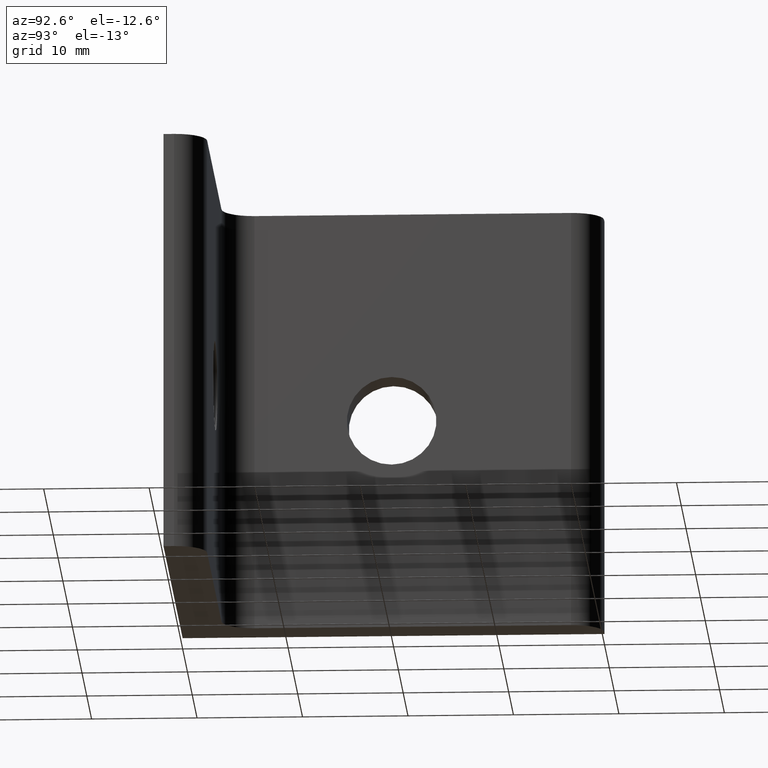
[diagram: clean part render]
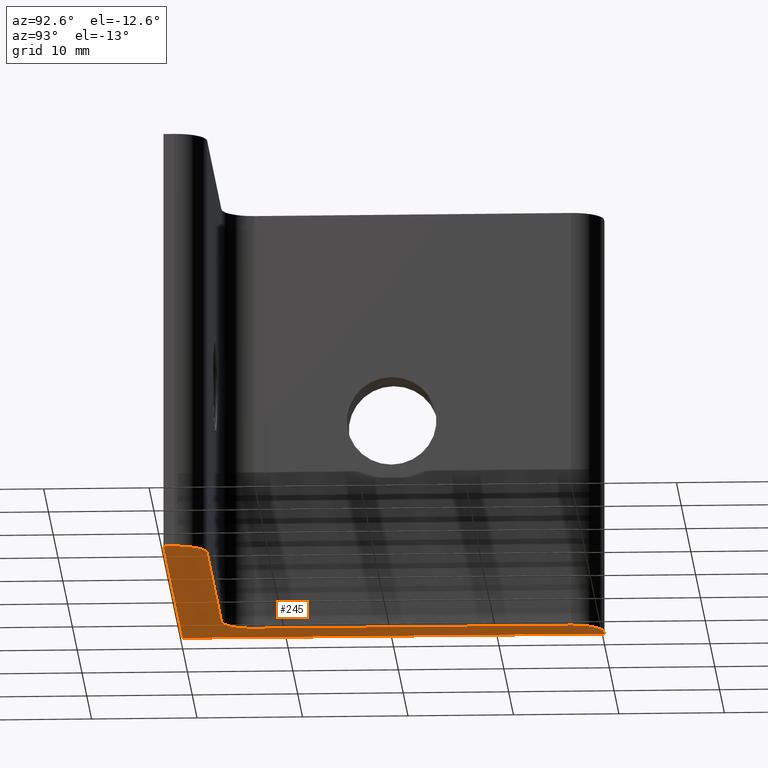
[diagram: same view with one face highlighted and labeled with its STEP entity id]
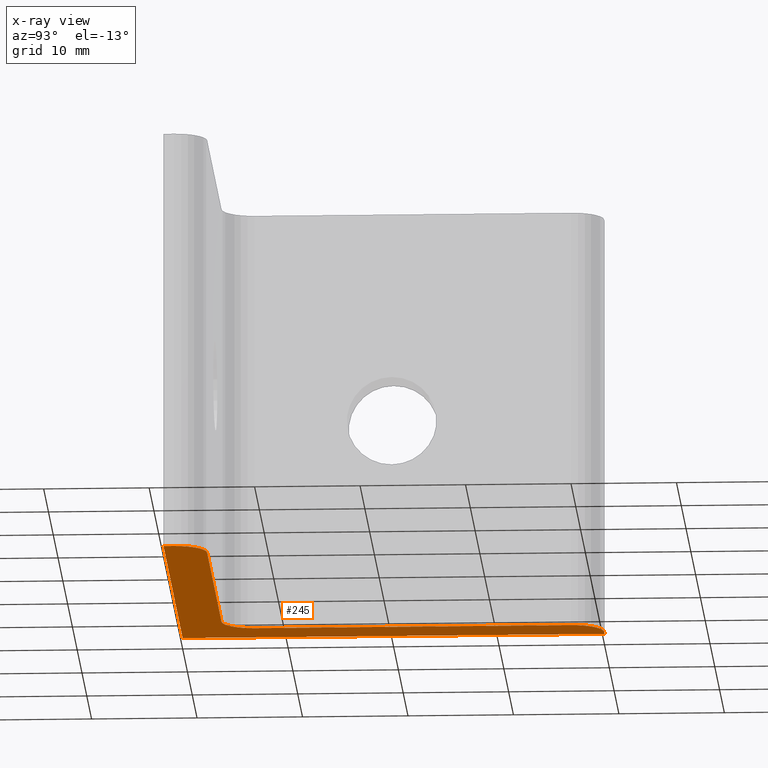
[diagram: x-ray of the same camera — body ghosted, the highlighted face saturated]
A machine part, auxiliary view. The second image highlights one B-rep face of the part: STEP entity #245.
The next image is the same camera in x-ray: the body ghosted, the highlighted face saturated — about 0% of this face is hidden behind the body in this view.
In plain terms, the highlighted planar face has unit normal (0, 0, 1).
Its self-contained STEP definition (entity closure, byte-faithful):
#15=LINE('',#354,#36);
#19=LINE('',#362,#40);
#22=LINE('',#368,#43);
#26=LINE('',#380,#47);
#30=LINE('',#392,#51);
#34=LINE('',#403,#55);
#36=VECTOR('',#287,40.);
#40=VECTOR('',#293,40.);
#43=VECTOR('',#298,1.);
#47=VECTOR('',#310,30.);
#51=VECTOR('',#322,30.);
#55=VECTOR('',#334,1.);
#64=PLANE('',#270);
#83=FACE_OUTER_BOUND('',#102,.T.);
#102=EDGE_LOOP('',(#219,#220,#221,#222,#223,#224,#225,#226,#227));
#107=CIRCLE('',#258,3.);
#109=CIRCLE('',#262,3.);
#111=CIRCLE('',#266,3.);
#117=VERTEX_POINT('',#352);
#118=VERTEX_POINT('',#353);
#121=VERTEX_POINT('',#361);
#123=VERTEX_POINT('',#367);
#125=VERTEX_POINT('',#373);
#127=VERTEX_POINT('',#379);
#129=VERTEX_POINT('',#385);
#131=VERTEX_POINT('',#391);
#133=VERTEX_POINT('',#397);
#139=EDGE_CURVE('',#117,#118,#15,.T.);
#143=EDGE_CURVE('',#118,#121,#19,.T.);
#146=EDGE_CURVE('',#121,#123,#22,.T.);
#149=EDGE_CURVE('',#123,#125,#107,.T.);
#152=EDGE_CURVE('',#125,#127,#26,.T.);
#155=EDGE_CURVE('',#127,#129,#109,.T.);
#158=EDGE_CURVE('',#129,#131,#30,.T.);
#161=EDGE_CURVE('',#131,#133,#111,.T.);
#164=EDGE_CURVE('',#133,#117,#34,.T.);
#219=ORIENTED_EDGE('',*,*,#139,.F.);
#220=ORIENTED_EDGE('',*,*,#164,.F.);
#221=ORIENTED_EDGE('',*,*,#161,.F.);
#222=ORIENTED_EDGE('',*,*,#158,.F.);
#223=ORIENTED_EDGE('',*,*,#155,.F.);
#224=ORIENTED_EDGE('',*,*,#152,.F.);
#225=ORIENTED_EDGE('',*,*,#149,.F.);
#226=ORIENTED_EDGE('',*,*,#146,.F.);
#227=ORIENTED_EDGE('',*,*,#143,.F.);
#245=ADVANCED_FACE('',(#83),#64,.F.);
#258=AXIS2_PLACEMENT_3D('',#374,#303,#304);
#262=AXIS2_PLACEMENT_3D('',#386,#315,#316);
#266=AXIS2_PLACEMENT_3D('',#398,#327,#328);
#270=AXIS2_PLACEMENT_3D('',#406,#338,#339);
#287=DIRECTION('',(0.,-1.,0.));
#293=DIRECTION('',(1.,0.,0.));
#298=DIRECTION('',(0.,1.,0.));
#303=DIRECTION('center_axis',(0.,0.,1.));
#304=DIRECTION('ref_axis',(-1.,0.,0.));
#310=DIRECTION('',(-1.,0.,0.));
#315=DIRECTION('center_axis',(0.,0.,-1.));
#316=DIRECTION('ref_axis',(1.,0.,0.));
#322=DIRECTION('',(0.,1.,0.));
#327=DIRECTION('center_axis',(0.,0.,1.));
#328=DIRECTION('ref_axis',(1.,0.,0.));
#334=DIRECTION('',(-1.,0.,0.));
#338=DIRECTION('center_axis',(0.,0.,1.));
#339=DIRECTION('ref_axis',(1.,0.,0.));
#352=CARTESIAN_POINT('',(0.,40.,-20.));
#353=CARTESIAN_POINT('',(0.,0.,-20.));
#354=CARTESIAN_POINT('',(0.,40.,-20.));
#361=CARTESIAN_POINT('',(40.,0.,-20.));
#362=CARTESIAN_POINT('',(0.,0.,-20.));
#367=CARTESIAN_POINT('',(40.,1.,-20.));
#368=CARTESIAN_POINT('',(40.,0.,-20.));
#373=CARTESIAN_POINT('',(37.,4.,-20.));
#374=CARTESIAN_POINT('Origin',(37.,1.,-20.));
#379=CARTESIAN_POINT('',(7.00000000000002,4.,-20.));
#380=CARTESIAN_POINT('',(37.,4.,-20.));
#385=CARTESIAN_POINT('',(4.00000000000002,7.,-20.));
#386=CARTESIAN_POINT('Origin',(7.00000000000002,7.,-20.));
#391=CARTESIAN_POINT('',(4.00000000000002,37.,-20.));
#392=CARTESIAN_POINT('',(4.00000000000002,7.,-20.));
#397=CARTESIAN_POINT('',(1.,40.,-20.));
#398=CARTESIAN_POINT('Origin',(1.,37.,-20.));
#403=CARTESIAN_POINT('',(1.,40.,-20.));
#406=CARTESIAN_POINT('Origin',(-2.,-2.,-20.));